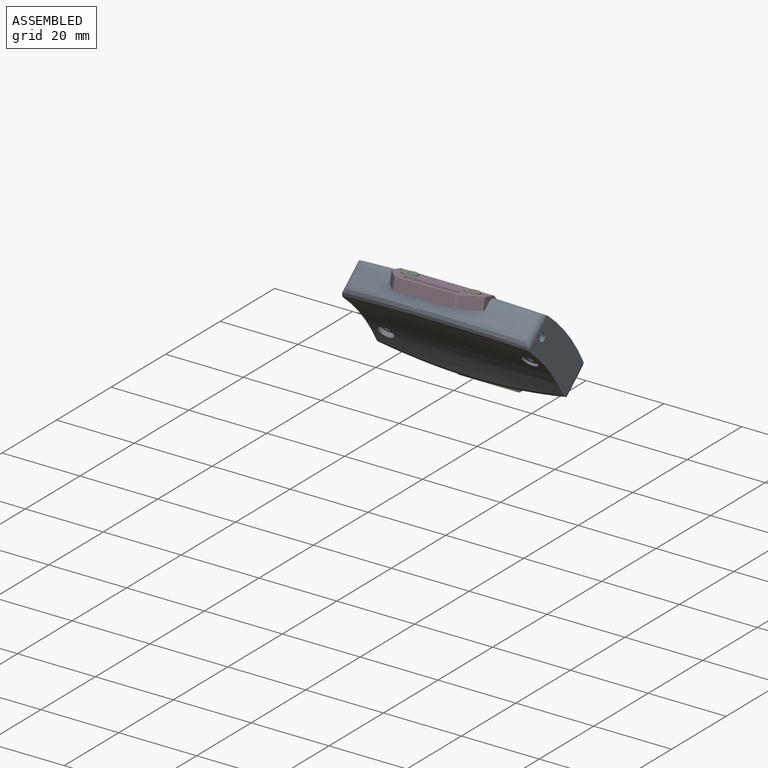
[diagram: assembled view]
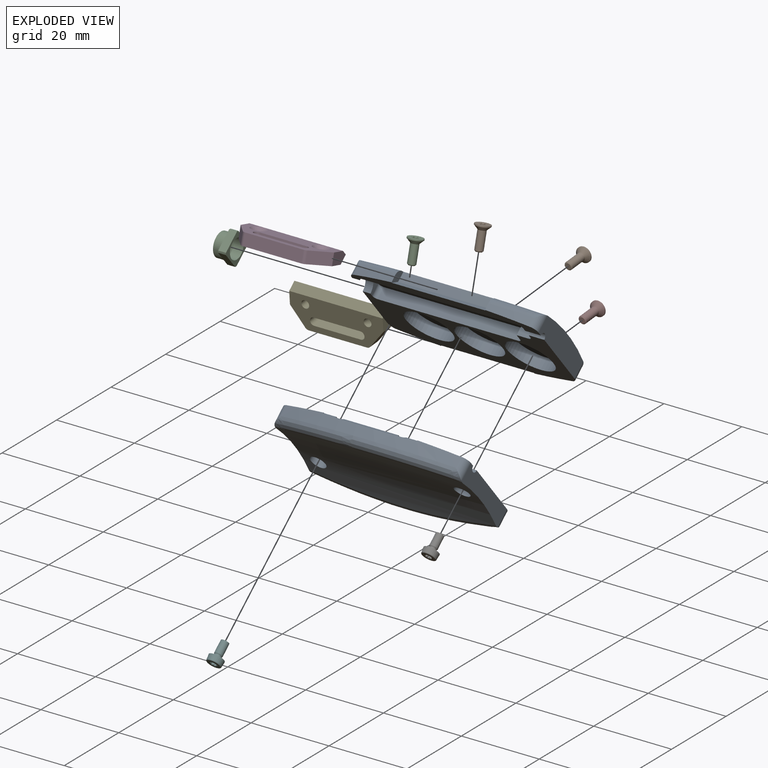
[diagram: exploded view]
GUIDED TOUR — MATED ASSEMBLY (Onshape document 3e9b18bfc284a68e3eb970aa, AutoMate assembly 3e9b18bfc284a68e3eb970aa_3fda9deae849f01a1582aa3c_451f5a48b15610e18419d6cf_default)

This assembly has 11 components, labeled P0..P10 below (a component is one placed occurrence of a part; the same part can appear more than once), held together by 19 mates. A mate is a constraint between two components; its type names the relative motion it leaves free:
  CYLINDRICAL — leaves both rotation about and translation along the listed axis free,
  FASTENED — locks the two components together rigidly (no relative motion),
  PLANAR — leaves sliding in the plane through the listed point (normal = the listed direction) and rotation about that normal free.
Axis/direction vectors are unit vectors and 'through' points are millimeter coordinates, both in the assembly's world frame.

MATES
  1. PLANAR "Planar 9": P3 <-> P0, direction (-1.000, 0.000, 0.000) through (-12.46, -7.38, 14.14) mm
  2. FASTENED "Fastened 4": P2 <-> P3, direction (0.000, 0.259, 0.966) through (-8.46, -9.70, 14.22) mm
  3. PLANAR "Planar 10": P4 <-> P0, direction (-1.000, 0.000, 0.000) through (-12.46, 8.95, -10.24) mm
  4. PLANAR "Planar 4": P3 <-> P0, direction (0.000, -0.259, -0.966) through (-0.46, -11.70, 12.19) mm
  5. PLANAR "Planar 11": P10 <-> P8, direction (-1.000, 0.000, 0.000) through (-22.46, -6.36, 3.31) mm
  6. CYLINDRICAL "Cylindrical 1": P0 <-> P8, axis (0.000, -0.766, -0.643) through (14.54, 1.64, -2.62) mm
  7. PLANAR "Planar 1": P0 <-> P8, direction (0.000, -0.766, -0.643) through (-0.71, 1.99, -3.04) mm
  8. PLANAR "Planar 8": P5 <-> P8, direction (0.000, 0.766, 0.643) through (-20.46, 0.41, -3.66) mm
  9. CYLINDRICAL "Cylindrical 3": P6 <-> P8, axis (0.000, 0.766, 0.643) through (19.54, -2.32, 3.19) mm
  10. PLANAR "Planar 3": P0 <-> P8, direction (-1.000, 0.000, 0.000) through (-24.46, 1.21, 2.06) mm
  11. FASTENED "Fastened 1": P4 <-> P7, direction (0.000, 0.996, 0.087) through (7.54, 9.83, -9.06) mm
  12. PLANAR "Planar 2": P3 <-> P0, direction (0.000, 0.643, -0.766) through (-0.46, -7.29, 12.08) mm
  13. PLANAR "Planar 7": P6 <-> P8, direction (0.000, 0.766, 0.643) through (19.54, -4.16, 1.65) mm
  14. PLANAR "Planar 6": P0 <-> P4, direction (0.000, 0.643, -0.766) through (-0.46, 8.13, -6.32) mm
  15. FASTENED "Fastened 3": P1 <-> P3, direction (0.000, 0.259, 0.966) through (7.54, -9.70, 14.22) mm
  16. FASTENED "Fastened 2": P9 <-> P4, direction (0.000, 0.996, 0.087) through (-8.46, 9.83, -9.06) mm
  17. PLANAR "Planar 5": P0 <-> P4, direction (0.000, 0.996, 0.087) through (-0.46, 7.28, -8.29) mm
  18. CYLINDRICAL "Cylindrical 4": P10 <-> P8, axis (-1.000, 0.000, 0.000) through (-23.46, -6.07, 6.57) mm
  19. CYLINDRICAL "Cylindrical 2": P5 <-> P8, axis (0.000, 0.766, 0.643) through (-20.46, 2.25, -2.11) mm

ASSEMBLY ORDER
  1. P0 — the base component [order heuristic]
  2. P3 [order heuristic]
  3. P4 [order heuristic]
  4. P8 [order heuristic]
  5. P1 [order heuristic]
  6. P2 [order heuristic]
  7. P5 [order heuristic]
  8. P6 [order heuristic]
  9. P7 [order heuristic]
  10. P9 [order heuristic]
  11. P10 [order heuristic]
Order-tag legend:
  [order heuristic] — this assembly is geometrically interlocked (no collision-free removal order exists), so components are listed in mate-graph order; insertion feasibility is not verified.

Of the 11 components, 3 carry the full construction recipe — the FeatureScript program that regenerates the part's solid from scratch; the rest are supplied as boundary geometry only.
Each toured component is shown spotlighted twice — in the assembled view, then in the exploded view, where a leader line traces a displaced component back to its assembled socket (saturated green if recipe-attached, orange if geometry-only; every other component desaturated gray) — followed by its recipe or geometry summary and the mates that hold it.
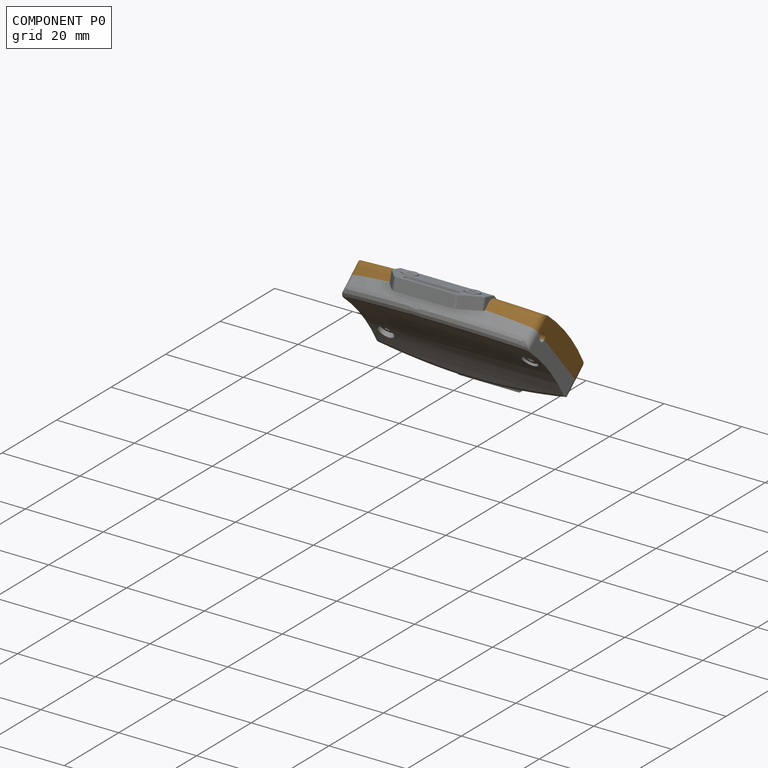
[diagram: component P0 — assembled]
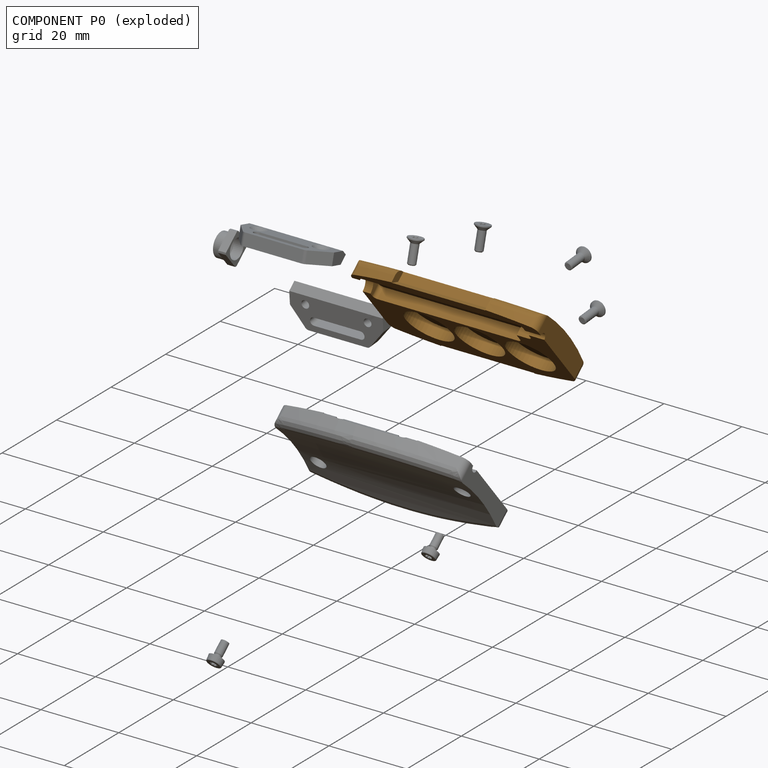
[diagram: component P0 — exploded]
COMPONENT P0 — geometry summary (no construction recipe available for this part):
  bounding box: 64.1 x 29.0 x 5.4 mm
  B-rep topology: 1 solid, 46 faces, 242 edges
  volume: 3622 mm^3 (36% of its bounding box)
Held by: PLANAR mate "Planar 9" to P3; PLANAR mate "Planar 10" to P4; PLANAR mate "Planar 4" to P3; CYLINDRICAL mate "Cylindrical 1" to P8; PLANAR mate "Planar 1" to P8; PLANAR mate "Planar 3" to P8; PLANAR mate "Planar 2" to P3; PLANAR mate "Planar 6" to P4; PLANAR mate "Planar 5" to P4.
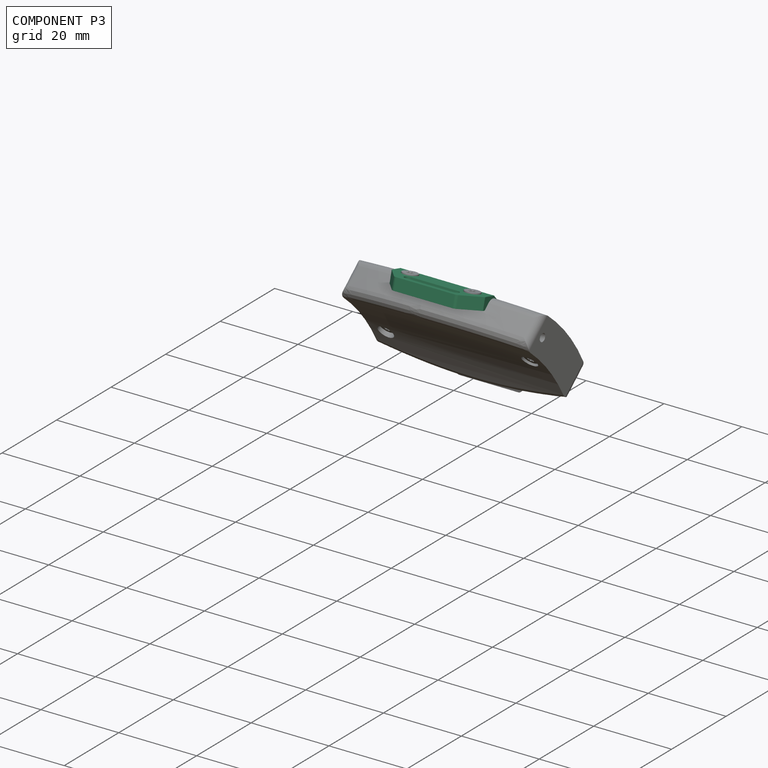
[diagram: component P3 — assembled]
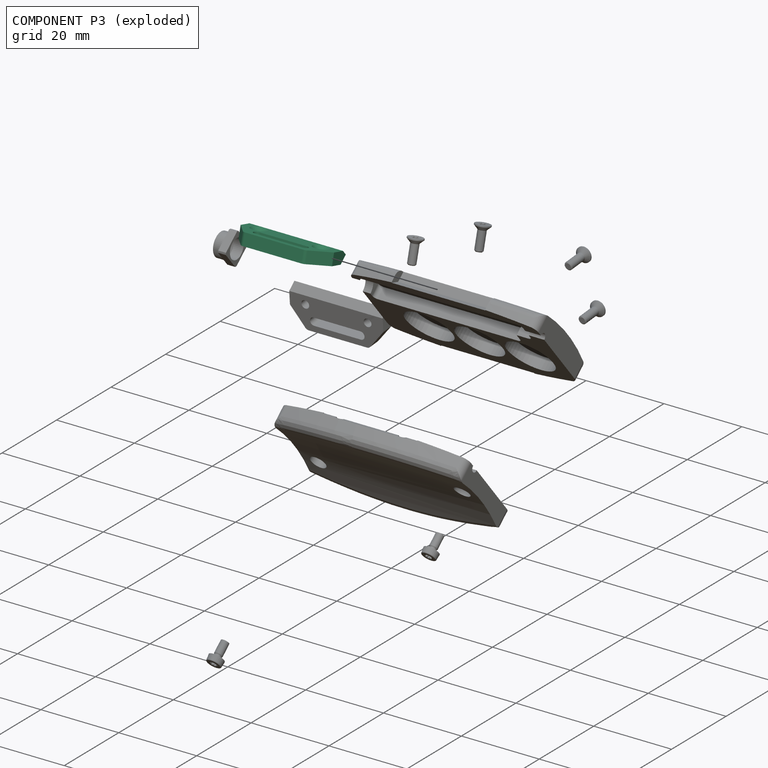
[diagram: component P3 — exploded]
COMPONENT P3 — recipe-attached (CADFS 00241229, mesh-verified: the recipe's output STEP matches this component's geometry to below the mesh-comparison resolution (tessellation chordal tolerance ~0.0391 mm)).
Held by: PLANAR mate "Planar 9" to P0; FASTENED mate "Fastened 4" to P2; PLANAR mate "Planar 4" to P0; PLANAR mate "Planar 2" to P0; FASTENED mate "Fastened 3" to P1.
Construction recipe (FeatureScript — the CAD program that rebuilds this solid; sketch coordinates are in the units given by the * unit suffixes, e.g. mm):

FeatureScript 1511;
import(path : "onshape/std/geometry.fs", version : "1511.0");
import(path : "onshape/std/common.fs", version : "1511.0");
const mm = millimeter;
const VERTEX = EntityType.VERTEX;
const EDGE = EntityType.EDGE;
const FACE = EntityType.FACE;
const BODY = EntityType.BODY;
function v(x, y){return vector(x, y);}
function OD(order){return orderDisambiguation(order);}
function OSD(set){return originalSetDisambiguation(set);}
function TD(topology){return topologyDisambiguation(topology);}
function TDD(query){return trueDependencyDisambiguation(query);}
function sQuery(a, b, c) {return sketchEntityQuery(a, b, c);}

annotation { "Feature Type Name" : "Feature", "Feature Type Description" : "" }
export const myFeature = defineFeature(function(context is Context, id is Id, definition is map)
    precondition{}
    {
        {
            var Q0;
            Q0=qCreatedBy(makeId("Top.planeOp"),FACE);
            var sketch = newSketch(context, id + "F0", { "sketchPlane" : qUnion([Q0])});
            skLineSegment(sketch, "E0", {"start": v(12, 5.47) * mm, "end": v(8, 0.47) * mm});
            skLineSegment(sketch, "E1", {"start": v(-8, 0.47) * mm, "end": v(-12, 5.47) * mm});
            skLineSegment(sketch, "E2.bottom", {"start": v(-7, 3.97) * mm, "end": v(7, 3.97) * mm});
            skLineSegment(sketch, "E2.top", {"start": v(-7, 1.97) * mm, "end": v(7, 1.97) * mm});
            skLineSegment(sketch, "E2.left", {"start": v(-7, 3.97) * mm, "end": v(-7, 1.97) * mm});
            skLineSegment(sketch, "E2.right", {"start": v(7, 3.97) * mm, "end": v(7, 1.97) * mm});
            skLineSegment(sketch, "E3", {"start": v(-12, 5.47) * mm, "end": v(-12, 10.47) * mm});
            skLineSegment(sketch, "E4", {"start": v(-12, 10.47) * mm, "end": v(12, 10.47) * mm});
            skLineSegment(sketch, "E5", {"start": v(12, 10.47) * mm, "end": v(12, 5.47) * mm});
            skLineSegment(sketch, "E6", {"start": v(-8, 0.47) * mm, "end": v(8, 0.47) * mm});
            skSolve(sketch);
        }
        {
            var Q0;
            Q0 = qSketchRegion(id + "F0", true);
            extrude(context, id + "F1", {"entities" : qUnion([Q0]), "depth" : 3 * mm});
        }
        {
            var Q0;
            Q0=makeQuery(id+"F1.opExtrude","SWEPT_EDGE",EDGE,{"disambiguationData":[OSD([sQuery(id+"F0.wireOp",EDGE,"E2.bottom"),sQuery(id+"F0.wireOp",EDGE,"E2.left")])]});
            var Q1;
            Q1=makeQuery(id+"F1.opExtrude","SWEPT_EDGE",EDGE,{"disambiguationData":[OSD([sQuery(id+"F0.wireOp",EDGE,"E2.top"),sQuery(id+"F0.wireOp",EDGE,"E2.left")])]});
            var Q2;
            Q2=makeQuery(id+"F1.opExtrude","SWEPT_EDGE",EDGE,{"disambiguationData":[OSD([sQuery(id+"F0.wireOp",EDGE,"E2.bottom"),sQuery(id+"F0.wireOp",EDGE,"E2.right")])]});
            var Q3;
            Q3=makeQuery(id+"F1.opExtrude","SWEPT_EDGE",EDGE,{"disambiguationData":[OSD([sQuery(id+"F0.wireOp",EDGE,"E2.top"),sQuery(id+"F0.wireOp",EDGE,"E2.right")])]});
            fillet(context, id + "F2", {"entities" : qUnion([Q0, Q1, Q2, Q3]), "radius" : 0.99 * mm, "tangentPropagation" : true, "allowEdgeOverflow" : false});
        }
        {
            var Q0;
            Q0=qCreatedBy(makeId("Right.planeOp"),FACE);
            var sketch = newSketch(context, id + "F3", { "sketchPlane" : qUnion([Q0])});
            skLineSegment(sketch, "E7", {"start": v(10.97, 3.2) * mm, "end": v(8.17, -0.8) * mm});
            skLineSegment(sketch, "E8", {"start": v(8.17, -0.8) * mm, "end": v(10.97, -0.8) * mm});
            skLineSegment(sketch, "E9", {"start": v(10.97, -0.8) * mm, "end": v(10.97, 3.2) * mm});
            skSolve(sketch);
        }
        {
            var Q0;
            Q0 = qSketchRegion(id + "F3", true);
            extrude(context, id + "F4", {"entities" : qUnion([Q0]), "operationType" : NewBodyOperationType.REMOVE, "oppositeDirection" : true, "depth" : 25 * mm, "hasSecondDirection" : true, "secondDirectionOppositeDirection" : false, "secondDirectionDepth" : 25 * mm});
        }
        {
            var Q0;
            Q0=makeQuery(id+"F1.opExtrude","SWEPT_EDGE",EDGE,{"disambiguationData":[OSD([sQuery(id+"F0.wireOp",EDGE,"E0"),sQuery(id+"F0.wireOp",EDGE,"E6")])]});
            var Q1;
            Q1=makeQuery(id+"F1.opExtrude","SWEPT_EDGE",EDGE,{"disambiguationData":[OSD([sQuery(id+"F0.wireOp",EDGE,"E1"),sQuery(id+"F0.wireOp",EDGE,"E6")])]});
            fillet(context, id + "F5", {"entities" : qUnion([Q0, Q1]), "radius" : 1 * mm, "tangentPropagation" : true, "allowEdgeOverflow" : false});
        }
        {
            var Q0;
            Q0=qCreatedBy(makeId("Right.planeOp"),FACE);
            var sketch = newSketch(context, id + "F6", { "sketchPlane" : qUnion([Q0])});
            skLineSegment(sketch, "E10", {"start": v(8.12, 3.5) * mm, "end": v(12.12, 0.7) * mm});
            skLineSegment(sketch, "E11", {"start": v(12.12, 0.7) * mm, "end": v(12.12, 3.5) * mm});
            skLineSegment(sketch, "E12", {"start": v(12.12, 3.5) * mm, "end": v(8.12, 3.5) * mm});
            skSolve(sketch);
        }
        {
            var Q0;
            Q0 = qSketchRegion(id + "F6", true);
            extrude(context, id + "F7", {"entities" : qUnion([Q0]), "operationType" : NewBodyOperationType.REMOVE, "depth" : 25 * mm, "hasSecondDirection" : true, "secondDirectionOppositeDirection" : true, "secondDirectionDepth" : 25 * mm});
        }
        {
            var Q0;
            Q0=qCreatedBy(makeId("Top.planeOp"),FACE);
            cPlane(context, id + "F8", {"entities" : qUnion([Q0]), "cplaneType" : CPlaneType.OFFSET, "offset" : 3 * mm, "width" : 150 * mm, "height" : 150 * mm});
        }
        {
            var Q0;
            Q0=qCreatedBy(id+"F8.planeOp",FACE);
            var sketch = newSketch(context, id + "F9", { "sketchPlane" : qUnion([Q0])});
            skPoint(sketch, "E13", {"position": v(-8, 6.57) * mm});
            skLineSegment(sketch, "E14", {"start": v(0, 15.58) * mm, "end": v(0, -7.95) * mm, "construction": true});
            skPoint(sketch, "E15.MirrorP", {"position": v(8, 6.57) * mm});
            skSolve(sketch);
        }
        {
            var Q0;
            Q0=sQuery(id+"F9.wireOp",VERTEX,"E13");
            var Q1;
            Q1=sQuery(id+"F9.wireOp",VERTEX,"E15.MirrorP");
            var Q2;
            Q2=makeQuery(id+"F1.opExtrude","SWEPT_BODY",BODY,{"disambiguationData":[OSD([sQuery(id+"F0.wireOp",EDGE,"E0"),sQuery(id+"F0.wireOp",EDGE,"E1"),sQuery(id+"F0.wireOp",EDGE,"E2.bottom"),sQuery(id+"F0.wireOp",EDGE,"E2.top"),sQuery(id+"F0.wireOp",EDGE,"E2.left"),sQuery(id+"F0.wireOp",EDGE,"E2.right"),sQuery(id+"F0.wireOp",EDGE,"E3"),sQuery(id+"F0.wireOp",EDGE,"E4"),sQuery(id+"F0.wireOp",EDGE,"E5"),sQuery(id+"F0.wireOp",EDGE,"E6")])]});
            hole(context, id + "F10", {"style" : HoleStyle.C_SINK, "endStyle" : HoleEndStyle.BLIND, "holeDiameter" : 2 * mm, "cSinkDiameter" : 4.1 * mm, "cSinkAngle" : 90 * degree, "holeDepth" : 4 * mm, "tappedDepth" : 12 * mm, "tapClearance" : 3, "locations" : qUnion([Q0, Q1]), "scope" : qUnion([Q2])});
        }
    });
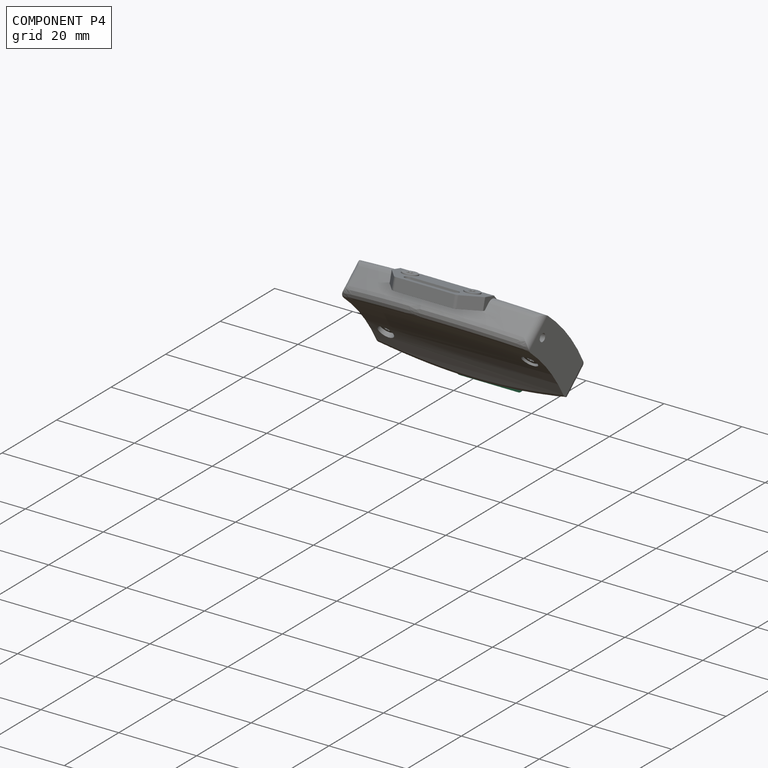
[diagram: component P4 — assembled]
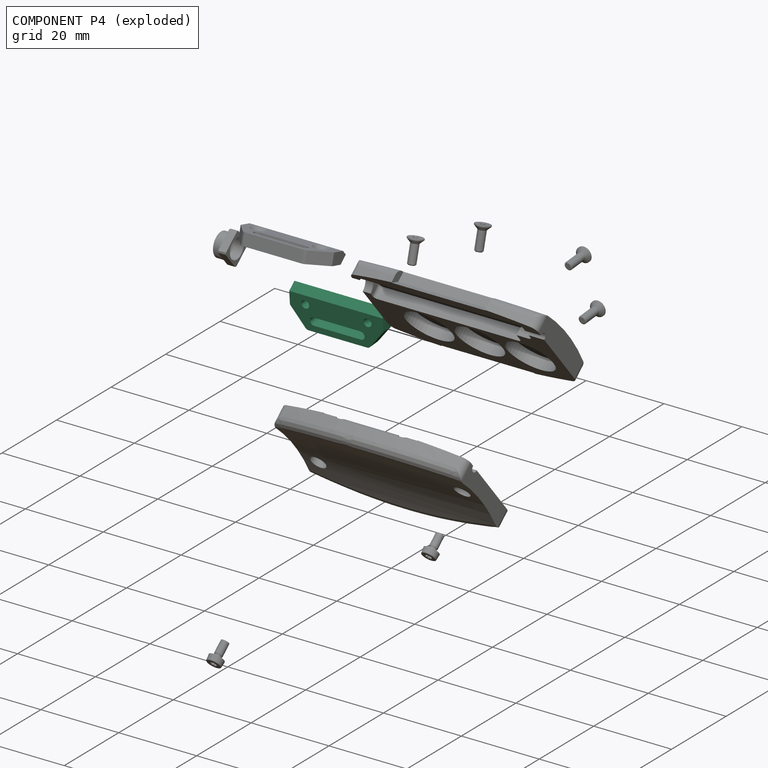
[diagram: component P4 — exploded]
COMPONENT P4 — same part as P3 (CADFS 00241229); its construction recipe is shown at P3.
Held by: PLANAR mate "Planar 10" to P0; FASTENED mate "Fastened 1" to P7; PLANAR mate "Planar 6" to P0; FASTENED mate "Fastened 2" to P9; PLANAR mate "Planar 5" to P0.
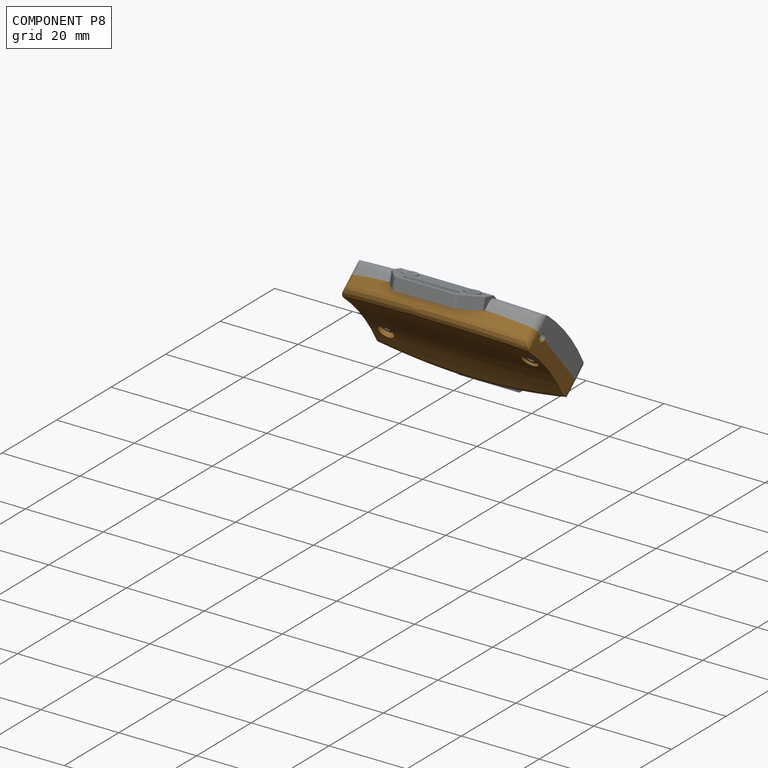
[diagram: component P8 — assembled]
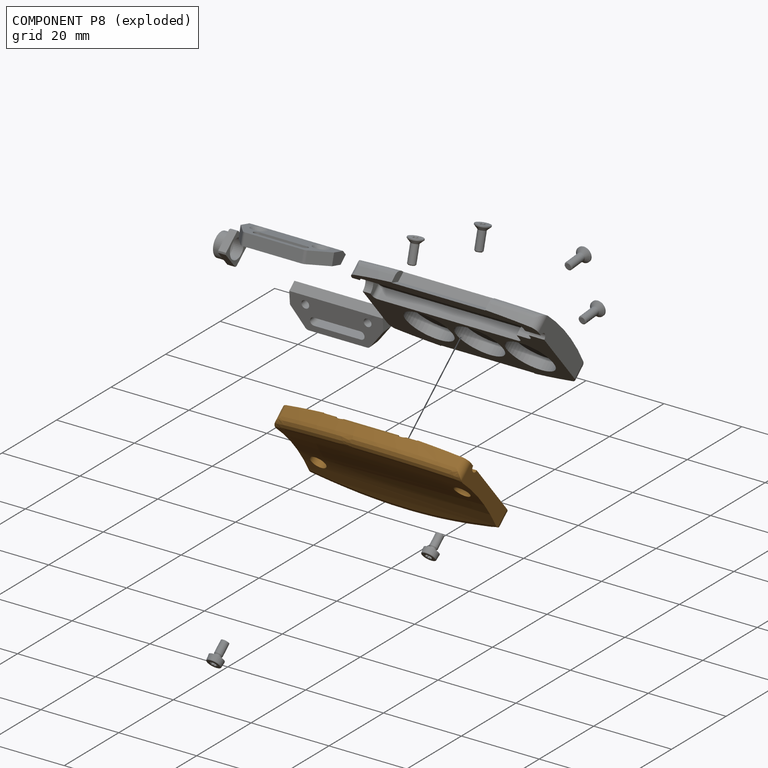
[diagram: component P8 — exploded]
COMPONENT P8 — geometry summary (no construction recipe available for this part):
  bounding box: 61.9 x 30.9 x 7.5 mm
  B-rep topology: 1 solid, 68 faces, 420 edges
  volume: 3330 mm^3 (23% of its bounding box)
Held by: PLANAR mate "Planar 11" to P10; CYLINDRICAL mate "Cylindrical 1" to P0; PLANAR mate "Planar 1" to P0; PLANAR mate "Planar 8" to P5; CYLINDRICAL mate "Cylindrical 3" to P6; PLANAR mate "Planar 3" to P0; PLANAR mate "Planar 7" to P6; CYLINDRICAL mate "Cylindrical 4" to P10; CYLINDRICAL mate "Cylindrical 2" to P5.
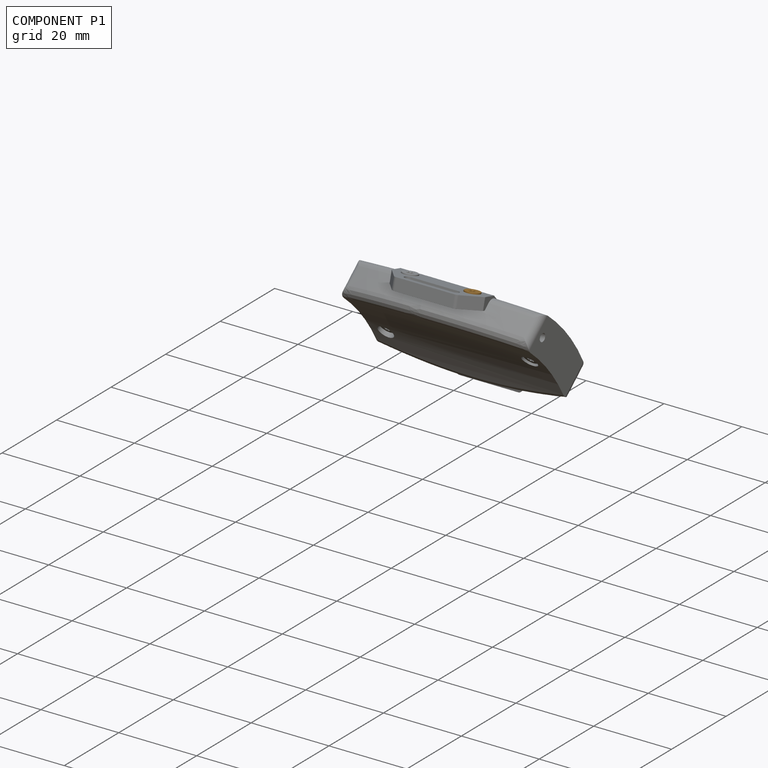
[diagram: component P1 — assembled]
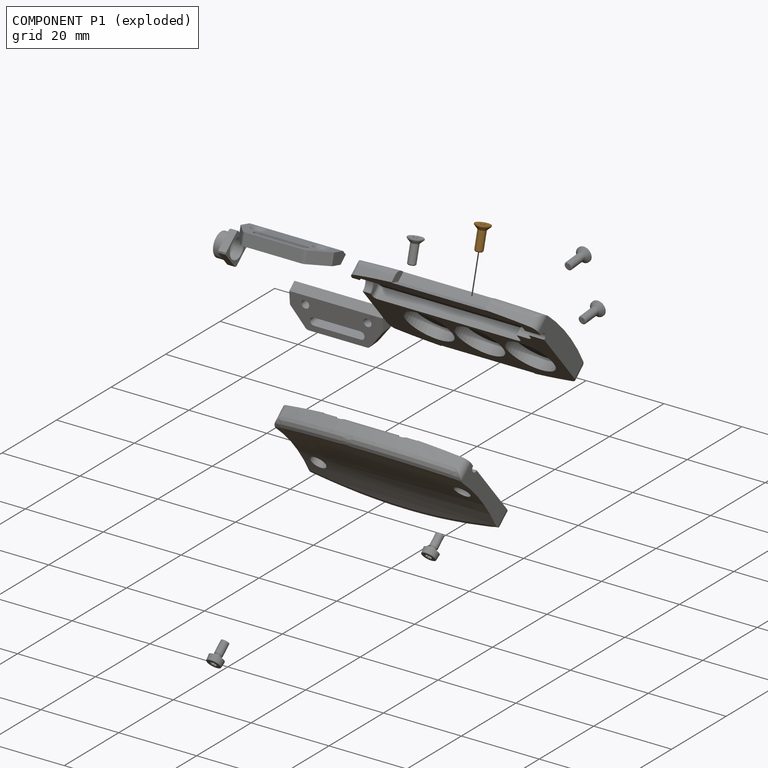
[diagram: component P1 — exploded]
COMPONENT P1 — geometry summary (no construction recipe available for this part):
  bounding box: 6.0 x 3.8 x 3.8 mm
  B-rep topology: 1 solid, 31 faces, 155 edges
  volume: 23 mm^3 (26% of its bounding box)
  symmetry: 6-fold rotationally symmetric about the x axis; mirror-symmetric across its y mid-plane, z mid-plane
Held by: FASTENED mate "Fastened 3" to P3.
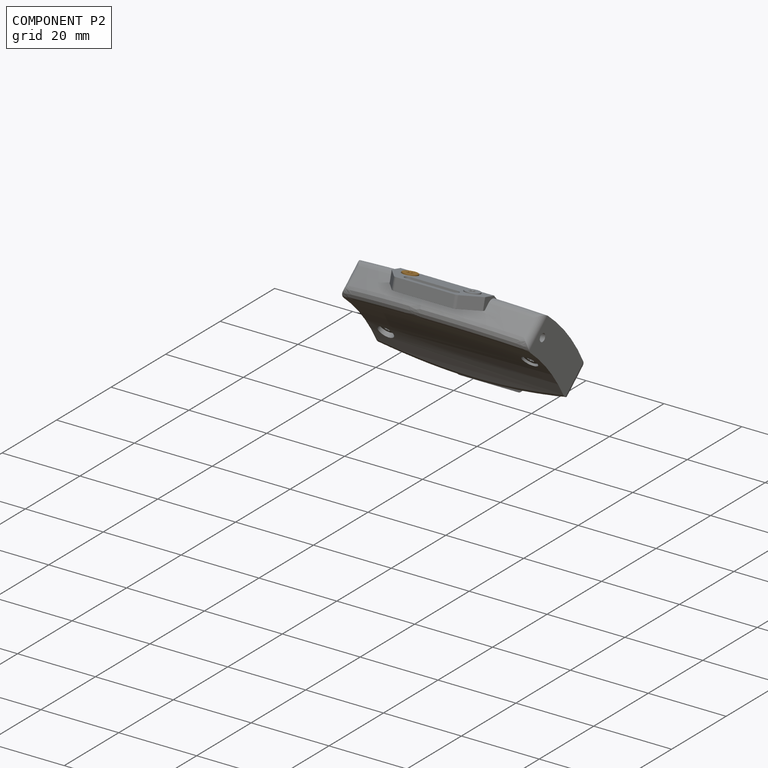
[diagram: component P2 — assembled]
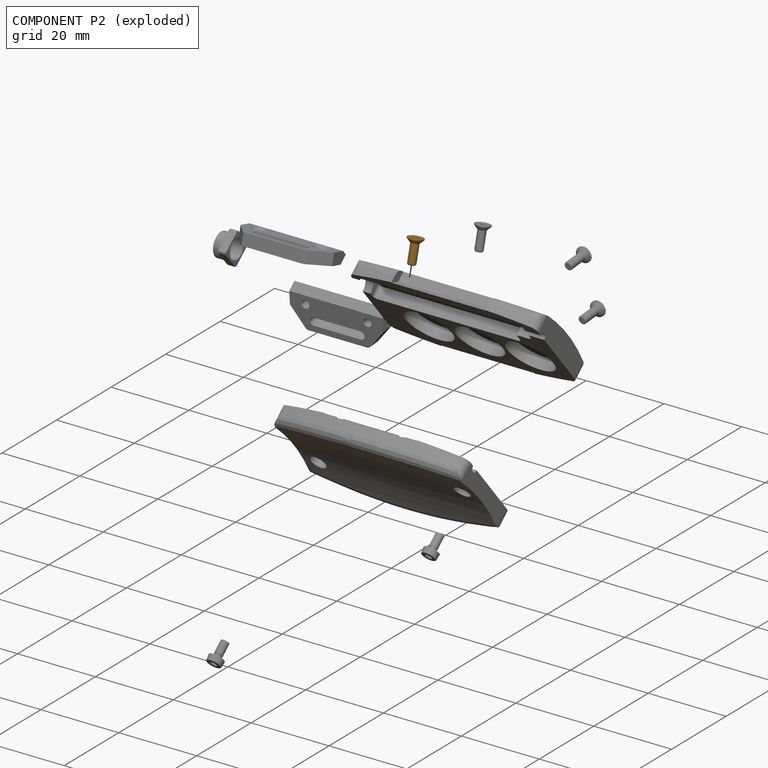
[diagram: component P2 — exploded]
COMPONENT P2 — geometry summary (no construction recipe available for this part):
  bounding box: 6.0 x 3.8 x 3.8 mm
  B-rep topology: 1 solid, 31 faces, 155 edges
  volume: 23 mm^3 (26% of its bounding box)
  symmetry: 6-fold rotationally symmetric about the x axis; mirror-symmetric across its y mid-plane, z mid-plane
Held by: FASTENED mate "Fastened 4" to P3.
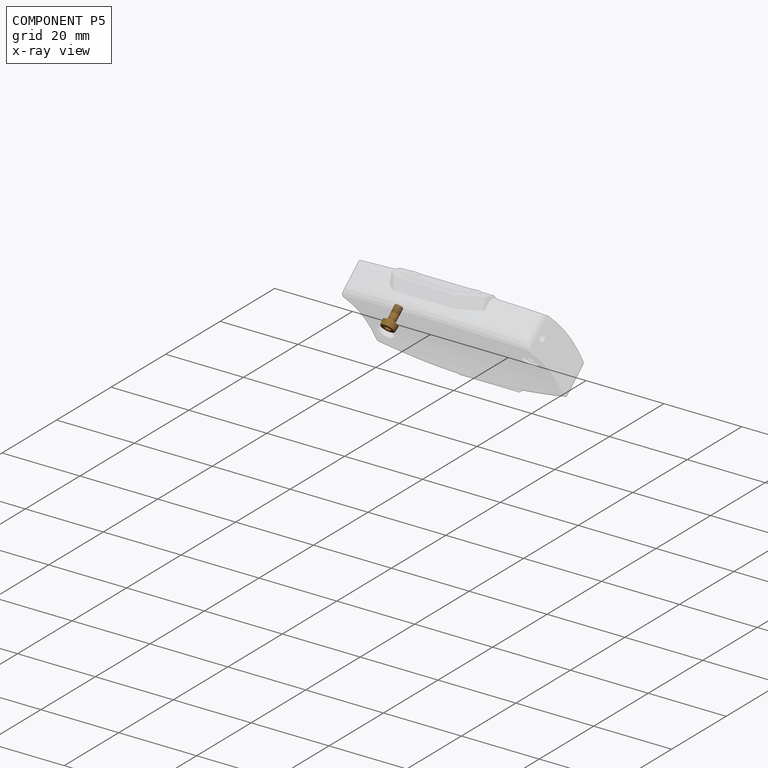
[diagram: component P5 — x-ray view]
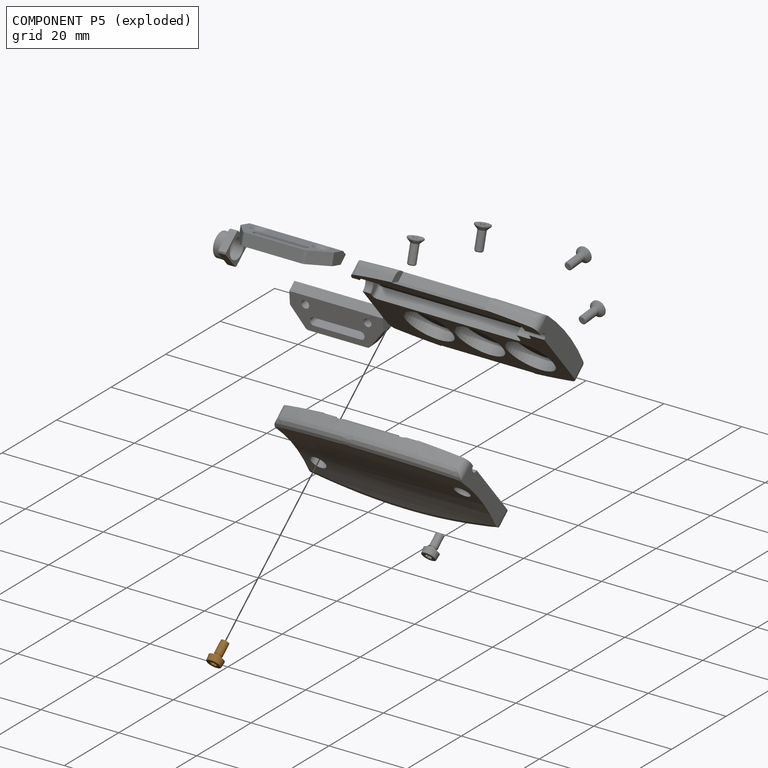
[diagram: component P5 — exploded]
COMPONENT P5 — geometry summary (no construction recipe available for this part):
  bounding box: 5.6 x 3.9 x 3.9 mm
  B-rep topology: 1 solid, 28 faces, 129 edges
  volume: 26 mm^3 (32% of its bounding box)
  symmetry: 6-fold rotationally symmetric about the x axis; mirror-symmetric across its y mid-plane, z mid-plane
Held by: PLANAR mate "Planar 8" to P8; CYLINDRICAL mate "Cylindrical 2" to P8.
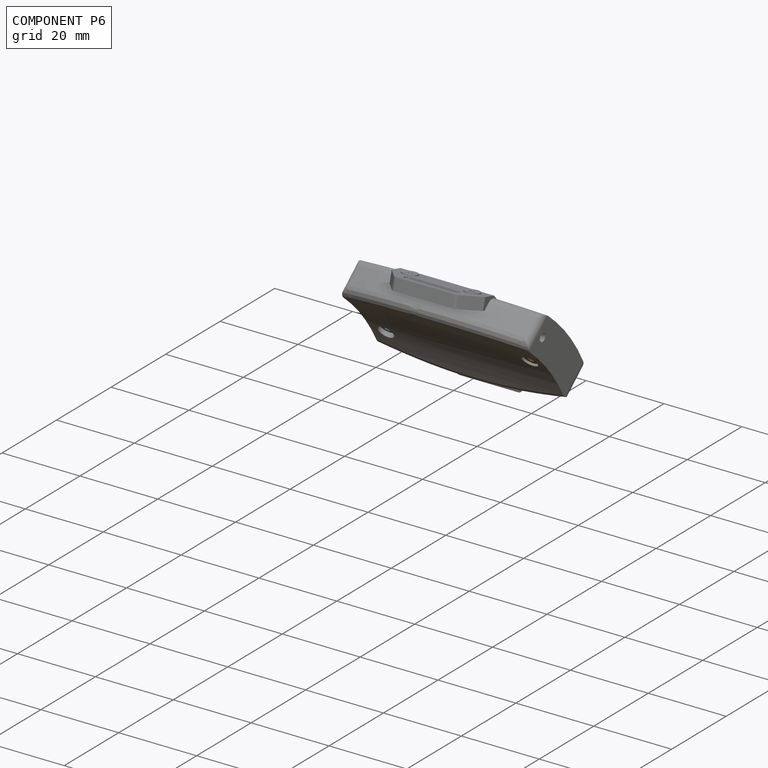
[diagram: component P6 — assembled]
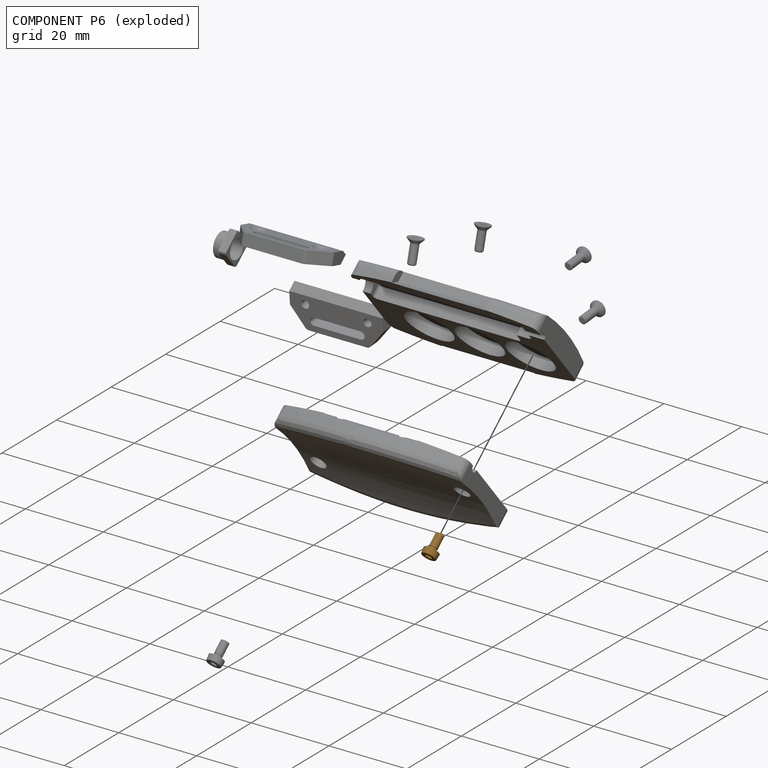
[diagram: component P6 — exploded]
COMPONENT P6 — geometry summary (no construction recipe available for this part):
  bounding box: 5.6 x 3.9 x 3.9 mm
  B-rep topology: 1 solid, 28 faces, 129 edges
  volume: 26 mm^3 (32% of its bounding box)
  symmetry: 6-fold rotationally symmetric about the x axis; mirror-symmetric across its y mid-plane, z mid-plane
Held by: CYLINDRICAL mate "Cylindrical 3" to P8; PLANAR mate "Planar 7" to P8.
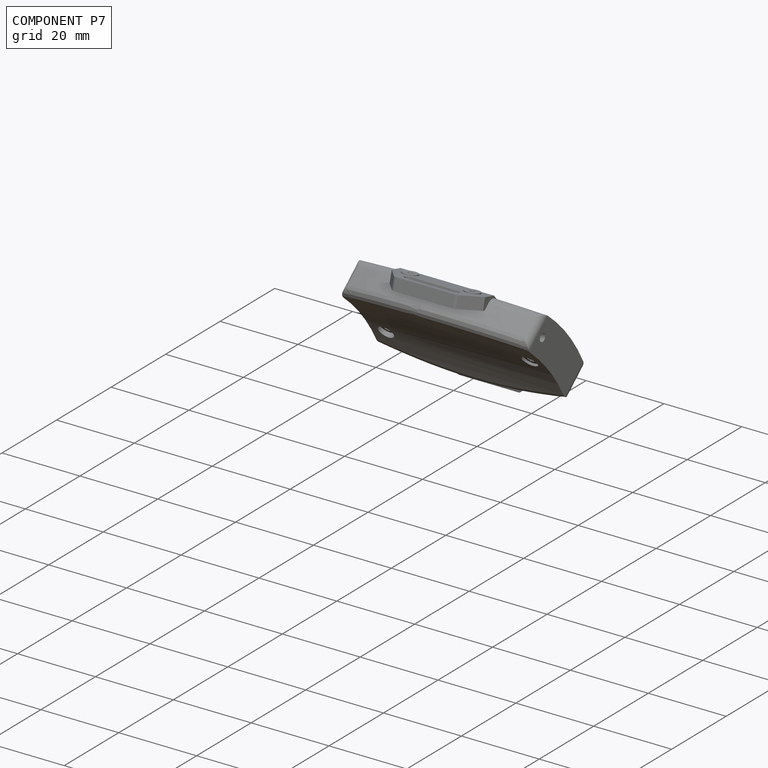
[diagram: component P7 — assembled]
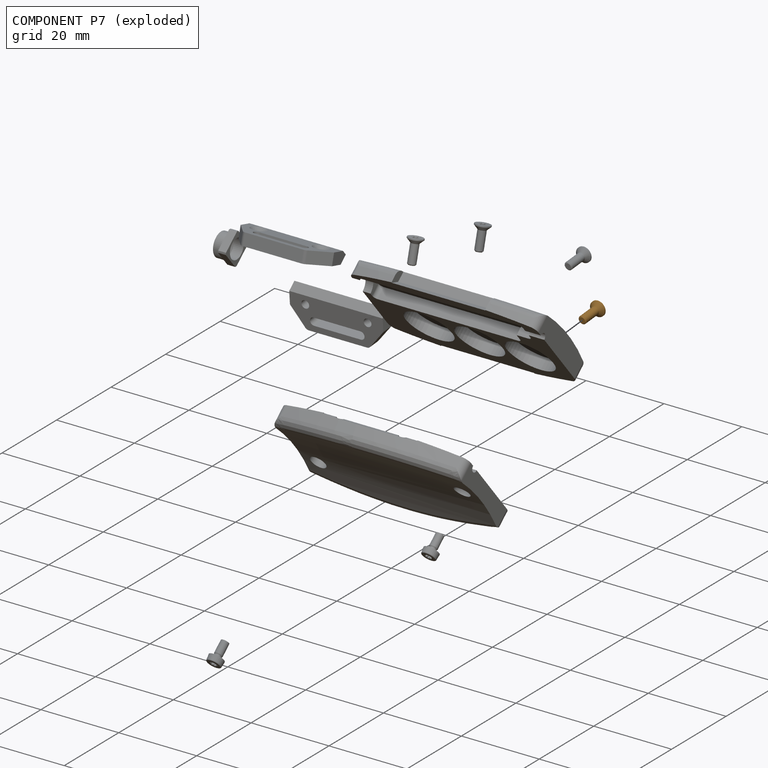
[diagram: component P7 — exploded]
COMPONENT P7 — geometry summary (no construction recipe available for this part):
  bounding box: 6.0 x 3.8 x 3.8 mm
  B-rep topology: 1 solid, 31 faces, 155 edges
  volume: 23 mm^3 (26% of its bounding box)
  symmetry: 6-fold rotationally symmetric about the x axis; mirror-symmetric across its y mid-plane, z mid-plane
Held by: FASTENED mate "Fastened 1" to P4.
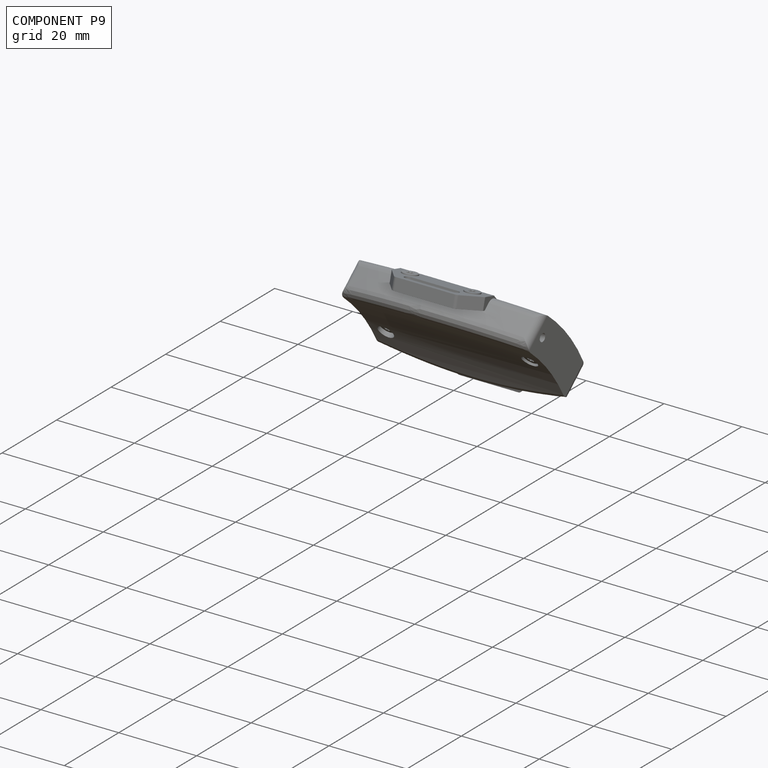
[diagram: component P9 — assembled]
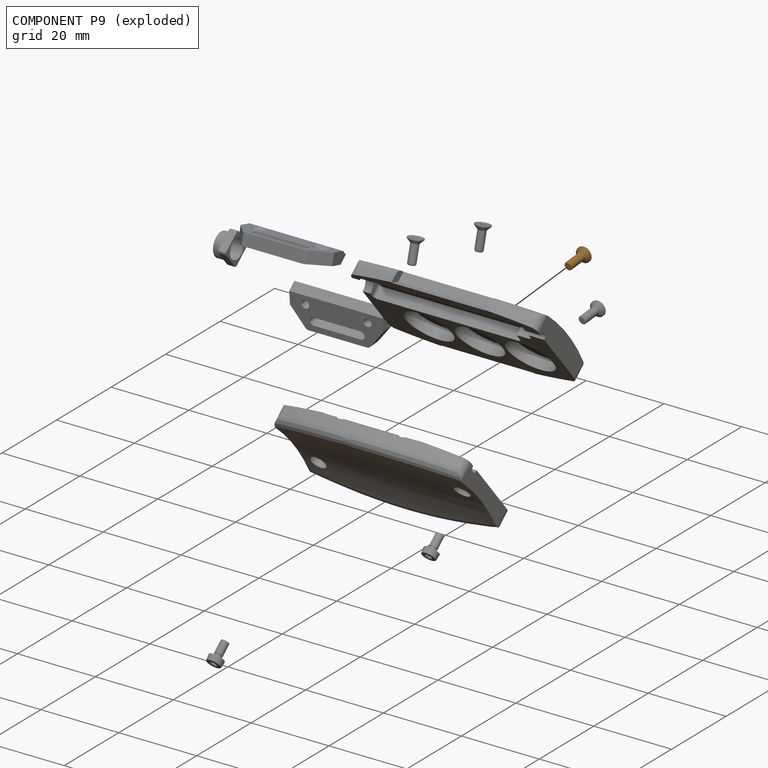
[diagram: component P9 — exploded]
COMPONENT P9 — geometry summary (no construction recipe available for this part):
  bounding box: 6.0 x 3.8 x 3.8 mm
  B-rep topology: 1 solid, 31 faces, 155 edges
  volume: 23 mm^3 (26% of its bounding box)
  symmetry: 6-fold rotationally symmetric about the x axis; mirror-symmetric across its y mid-plane, z mid-plane
Held by: FASTENED mate "Fastened 2" to P4.
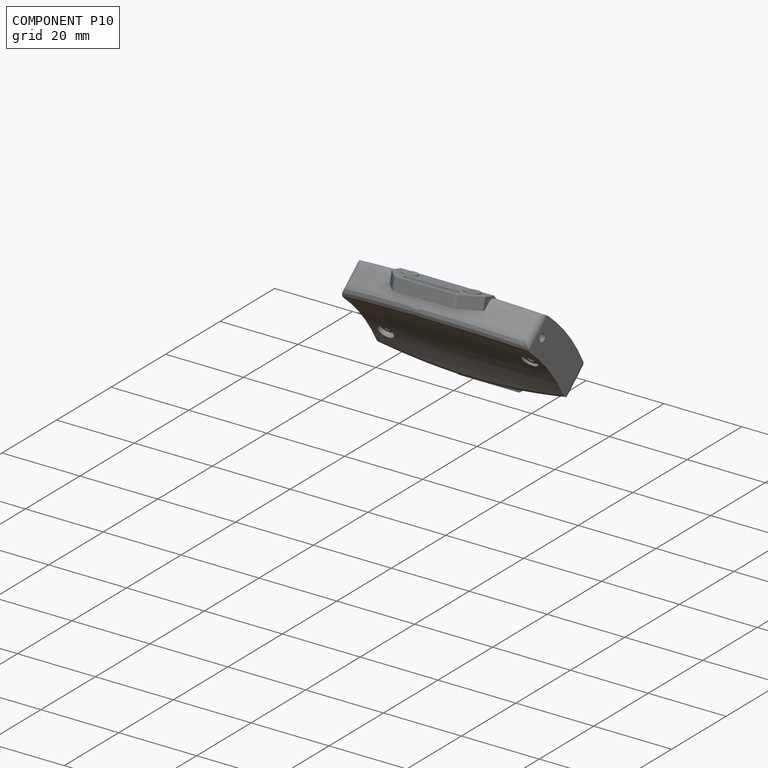
[diagram: component P10 — assembled]
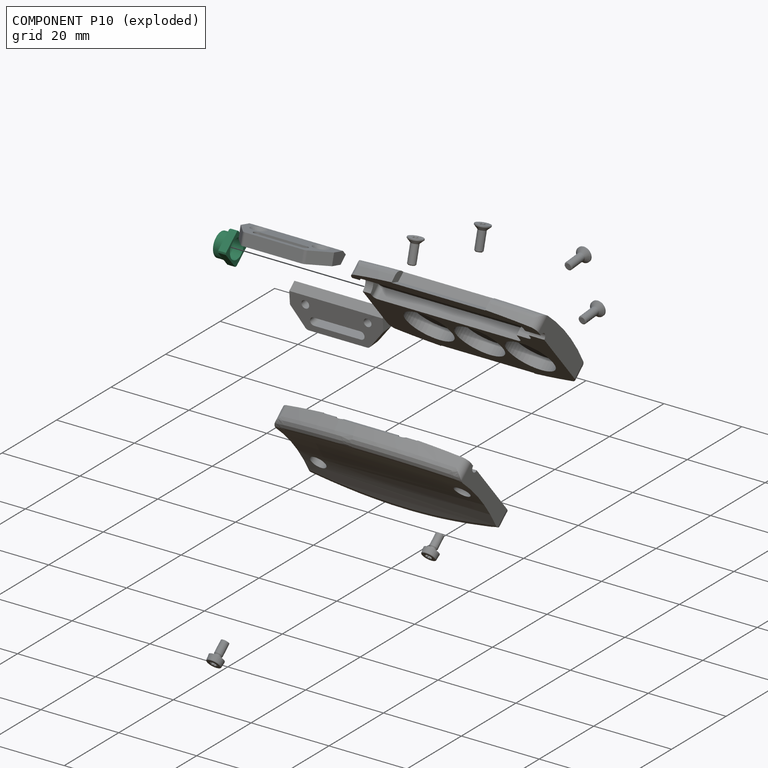
[diagram: component P10 — exploded]
COMPONENT P10 — recipe-attached (CADFS 00241231, mesh-verified: the recipe's output STEP matches this component's geometry to below the mesh-comparison resolution (tessellation chordal tolerance ~0.0141 mm)).
Held by: PLANAR mate "Planar 11" to P8; CYLINDRICAL mate "Cylindrical 4" to P8.
Construction recipe (FeatureScript — the CAD program that rebuilds this solid; sketch coordinates are in the units given by the * unit suffixes, e.g. mm):

FeatureScript 1511;
import(path : "onshape/std/geometry.fs", version : "1511.0");
import(path : "onshape/std/common.fs", version : "1511.0");
const mm = millimeter;
const VERTEX = EntityType.VERTEX;
const EDGE = EntityType.EDGE;
const FACE = EntityType.FACE;
const BODY = EntityType.BODY;
function v(x, y){return vector(x, y);}
function OD(order){return orderDisambiguation(order);}
function OSD(set){return originalSetDisambiguation(set);}
function TD(topology){return topologyDisambiguation(topology);}
function TDD(query){return trueDependencyDisambiguation(query);}
function sQuery(a, b, c) {return sketchEntityQuery(a, b, c);}

annotation { "Feature Type Name" : "Feature", "Feature Type Description" : "" }
export const myFeature = defineFeature(function(context is Context, id is Id, definition is map)
    precondition{}
    {
        {
            var Q0;
            Q0=qCreatedBy(makeId("Top.planeOp"),FACE);
            var sketch = newSketch(context, id + "F0", { "sketchPlane" : qUnion([Q0])});
            skCircle(sketch, "E0", {"center": v(0, 0) * mm, "radius": 3 * mm});
            skSolve(sketch);
        }
        {
            var Q0;
            Q0 = qSketchRegion(id + "F0", true);
            extrude(context, id + "F1", {"entities" : qUnion([Q0]), "depth" : 2 * mm});
        }
        {
            var Q0;
            Q0=makeQuery(id+"F1.opExtrude","CAP_FACE",FACE,{"disambiguationData":[OSD([sQuery(id+"F0.wireOp",EDGE,"E0")])],"isStart":false});
            var sketch = newSketch(context, id + "F2", { "sketchPlane" : qUnion([Q0])});
            skCircle(sketch, "E1", {"center": v(0, 0) * mm, "radius": 4 * mm});
            skSolve(sketch);
        }
        {
            var Q0;
            Q0 = qSketchRegion(id + "F2", true);
            extrude(context, id + "F3", {"entities" : qUnion([Q0]), "operationType" : NewBodyOperationType.ADD, "depth" : 2 * mm});
        }
        {
            var Q0;
            Q0=makeQuery(id+"F3.opExtrude","CAP_FACE",FACE,{"disambiguationData":[OSD([sQuery(id+"F2.wireOp",EDGE,"E1")])],"isStart":false});
            var sketch = newSketch(context, id + "F4", { "sketchPlane" : qUnion([Q0])});
            skPoint(sketch, "E2", {"position": v(0, 0) * mm});
            skSolve(sketch);
        }
        {
            var Q0;
            Q0=makeQuery(id+"F3.opExtrude","CAP_FACE",FACE,{"disambiguationData":[OSD([sQuery(id+"F2.wireOp",EDGE,"E1")])],"isStart":false});
            var sketch = newSketch(context, id + "F5", { "sketchPlane" : qUnion([Q0])});
            skLineSegment(sketch, "E3.bottom", {"start": v(-3, 3) * mm, "end": v(3, 3) * mm});
            skLineSegment(sketch, "E3.top", {"start": v(-3, -3) * mm, "end": v(3, -3) * mm});
            skLineSegment(sketch, "E3.left", {"start": v(-3, 3) * mm, "end": v(-3, -3) * mm});
            skLineSegment(sketch, "E3.right", {"start": v(3, 3) * mm, "end": v(3, -3) * mm});
            skSolve(sketch);
        }
        {
            var Q0;
            Q0 = qSketchRegion(id + "F5", true);
            extrude(context, id + "F6", {"entities" : qUnion([Q0]), "operationType" : NewBodyOperationType.INTERSECT, "oppositeDirection" : true, "depth" : 25 * mm});
        }
        {
            var Q0;
            Q0=sQuery(id+"F4.wireOp",VERTEX,"E2");
            var Q1;
            Q1=makeQuery(id+"F1.opExtrude","SWEPT_BODY",BODY,{"disambiguationData":[OSD([sQuery(id+"F0.wireOp",EDGE,"E0")])]});
            hole(context, id + "F7", {"style" : HoleStyle.SIMPLE, "endStyle" : HoleEndStyle.BLIND, "holeDiameter" : 5 * mm, "holeDepth" : 2.5 * mm, "tappedDepth" : 12 * mm, "tapClearance" : 3, "locations" : qUnion([Q0]), "scope" : qUnion([Q1])});
        }
    });
PROVENANCE & LICENSES
Assembly (occurrences, transforms, mates, per-part STEP geometry): AutoMate dataset, Zenodo record 7776208, CC0.
Construction recipes: CADFS (HuggingFace VladPyatov/CADFS, CC-BY-4.0, layered over the ABC dataset), FeatureScript reconstruction programs keyed by ABC model id.
Join: ABC meta listings map ABC model id -> Onshape documentId; within a shared document, parts are matched by geometric signature (bounding-box dims + volume at 0.1% relative tolerance, exact B-rep face/solid counts).
Verification: 3 of this assembly's 11 components carry a recipe attachment, and every attachment is mesh-verified: the CADFS STEP and the AutoMate member STEP were compared as meshes in their shared local frame (symmetric sampled-point-to-mesh distance); worst across the 3 attachments: below the mesh-comparison resolution (tessellation chordal tolerance ~0.0391 mm) on a 26 mm part.
Renders: orthographic iso camera (az 35 / el 25); the floor grid conveys scale (grid pitch printed in each image; no ruler). In the exploded view each component is displaced by its stored offset vector: the offsets alone carry the explosion direction (mate normal/axis signs are not orientation cues and do not encode it), and separation distances are assigned per mate-chain, not proportionally to assembly-order depth.
